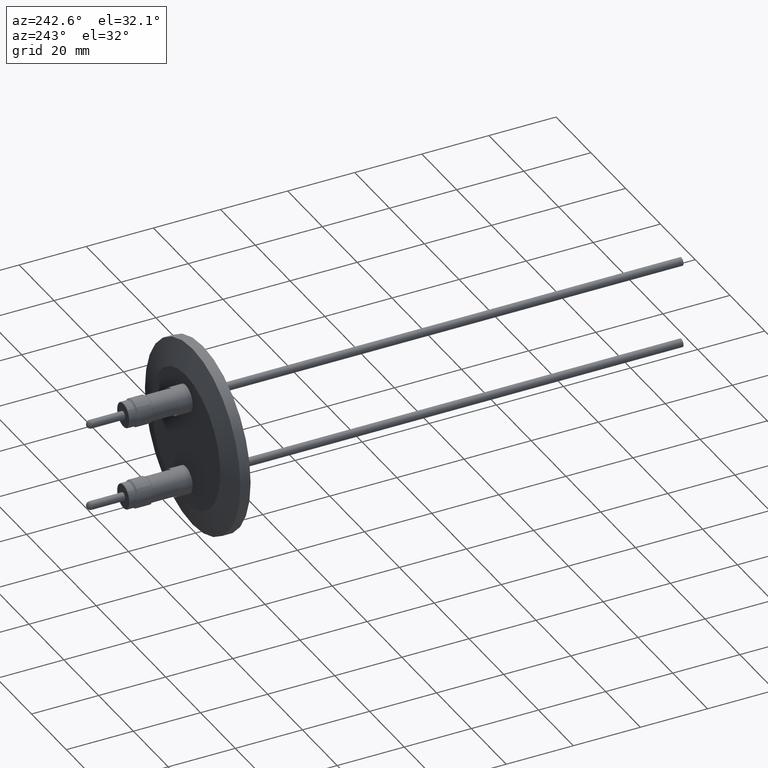
[diagram: clean part render]
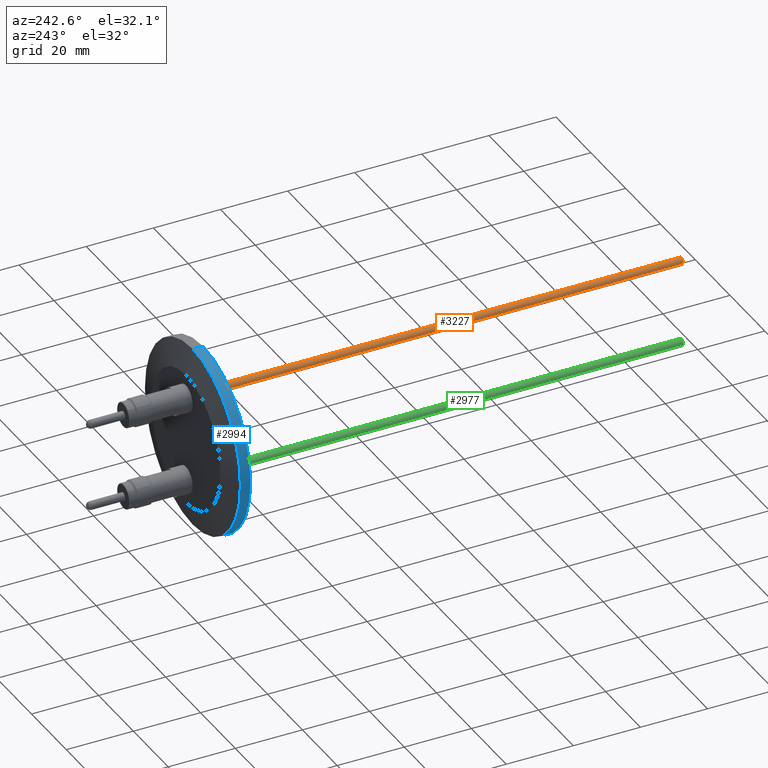
[diagram: same view with three faces highlighted in distinct colors, each labeled with its STEP entity id]
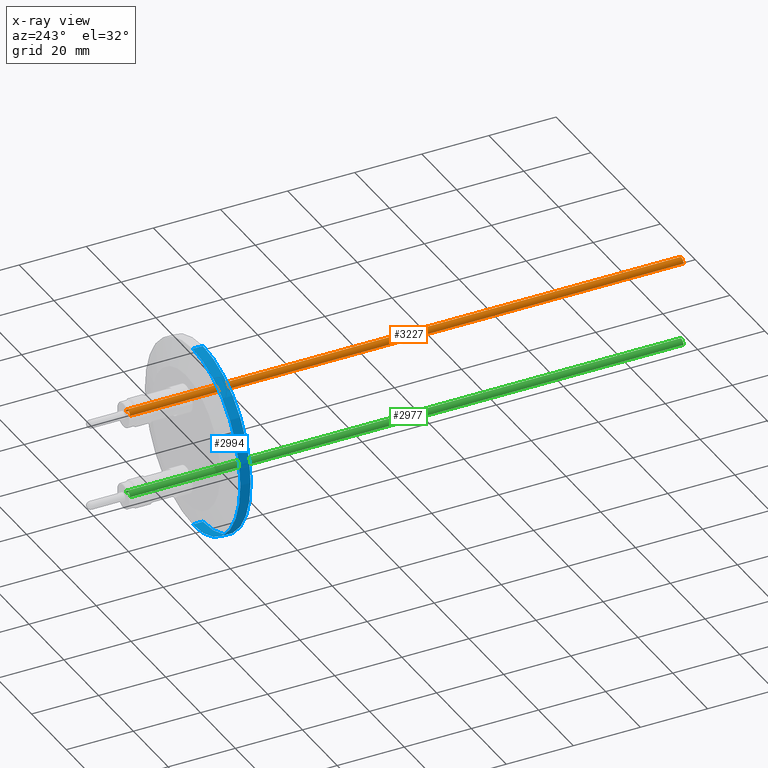
[diagram: x-ray of the same camera — body ghosted, the three highlighted faces saturated]
A machine part, auxiliary view with three faces highlighted in distinct colors.
The next image is the same camera in x-ray (body ghosted, the three faces saturated) — at least one of them is partly hidden behind the body in this view.
Their STEP definitions:

[orange] entity #3227 — the highlighted cylindrical surface (edge-blend (fillet) strip) has radius 1.1938 mm, axis along (0, 1, 0).
#4 = CARTESIAN_POINT ( 'NONE',  ( 0.04699999999999914000, -6.487712025527222300, 0.4999999999999992200 ) ) ;
#25 = CARTESIAN_POINT ( 'NONE',  ( -0.04700000000000100600, -6.487712025527222300, 0.5000000000000002200 ) ) ;
#578 = VERTEX_POINT ( 'NONE', #25 ) ;
#592 = VERTEX_POINT ( 'NONE', #4 ) ;
#634 = VECTOR ( 'NONE', #688, 39.37007874015748100 ) ;
#637 = VECTOR ( 'NONE', #682, 39.37007874015748100 ) ;
#638 = LINE ( 'NONE', #683, #634 ) ;
#639 = CIRCLE ( 'NONE', #1216, 0.04700000000000006900 ) ;
#641 = LINE ( 'NONE', #685, #637 ) ;
#643 = CIRCLE ( 'NONE', #1217, 0.04700000000000006900 ) ;
#682 = DIRECTION ( 'NONE',  ( 1.139261799679175500E-016, 1.000000000000000000, 3.998016188549883300E-017 ) ) ;
#683 = CARTESIAN_POINT ( 'NONE',  ( -0.04700000000000100600, -6.487712025527222300, 0.5000000000000001100 ) ) ;
#684 = DIRECTION ( 'NONE',  ( 1.000000000000000000, 0.0000000000000000000, -1.017177444449458100E-014 ) ) ;
#685 = CARTESIAN_POINT ( 'NONE',  ( 0.04699999999999914000, -6.487712025527222300, 0.4999999999999991100 ) ) ;
#687 = DIRECTION ( 'NONE',  ( 1.000000000000000000, -1.135242683537341800E-016, 0.0000000000000000000 ) ) ;
#688 = DIRECTION ( 'NONE',  ( 1.139261799679175500E-016, 1.000000000000000000, 3.998016188549883300E-017 ) ) ;
#689 = DIRECTION ( 'NONE',  ( 1.139261799679161200E-016, 1.000000000000000000, 4.491584059259572200E-017 ) ) ;
#690 = CARTESIAN_POINT ( 'NONE',  ( -1.942007370715040900E-016, 0.007287974472774305000, 0.4999999999999998300 ) ) ;
#691 = DIRECTION ( 'NONE',  ( -1.139261799679175500E-016, -1.000000000000000000, -3.998016188549883300E-017 ) ) ;
#693 = CARTESIAN_POINT ( 'NONE',  ( -9.341512759631281400E-016, -6.487712025527222300, 0.4999999999999996100 ) ) ;
#1216 = AXIS2_PLACEMENT_3D ( 'NONE', #690, #689, #687 ) ;
#1217 = AXIS2_PLACEMENT_3D ( 'NONE', #693, #691, #684 ) ;
#1341 = CYLINDRICAL_SURFACE ( 'NONE', #3200, 0.04700000000000006900 ) ;
#1347 = FACE_OUTER_BOUND ( 'NONE', #1912, .T. ) ;
#1744 = EDGE_CURVE ( 'NONE', #592, #578, #643, .T. ) ;
#1745 = EDGE_CURVE ( 'NONE', #592, #1890, #641, .T. ) ;
#1746 = EDGE_CURVE ( 'NONE', #1950, #1890, #639, .T. ) ;
#1747 = EDGE_CURVE ( 'NONE', #578, #1950, #638, .T. ) ;
#1890 = VERTEX_POINT ( 'NONE', #2728 ) ;
#1912 = EDGE_LOOP ( 'NONE', ( #2185, #2184, #2191, #2204 ) ) ;
#1950 = VERTEX_POINT ( 'NONE', #2678 ) ;
#2184 = ORIENTED_EDGE ( 'NONE', *, *, #1745, .T. ) ;
#2185 = ORIENTED_EDGE ( 'NONE', *, *, #1744, .F. ) ;
#2191 = ORIENTED_EDGE ( 'NONE', *, *, #1746, .F. ) ;
#2204 = ORIENTED_EDGE ( 'NONE', *, *, #1747, .F. ) ;
#2678 = CARTESIAN_POINT ( 'NONE',  ( -0.04700000000000027100, 0.007287974472774310200, 0.5000000000000002200 ) ) ;
#2728 = CARTESIAN_POINT ( 'NONE',  ( 0.04699999999999987500, 0.007287974472774299800, 0.4999999999999992200 ) ) ;
#3200 = AXIS2_PLACEMENT_3D ( 'NONE', #3411, #3409, #3407 ) ;
#3227 = ADVANCED_FACE ( 'NONE', ( #1347 ), #1341, .T. ) ;
#3407 = DIRECTION ( 'NONE',  ( -1.000000000000000000, 0.0000000000000000000, 1.017177444449458100E-014 ) ) ;
#3409 = DIRECTION ( 'NONE',  ( 1.139261799679175500E-016, 1.000000000000000000, 3.998016188549883300E-017 ) ) ;
#3411 = CARTESIAN_POINT ( 'NONE',  ( -9.341512759631281400E-016, -6.487712025527222300, 0.4999999999999996100 ) ) ;

[blue] entity #2994 — the highlighted cylindrical surface (partial cylindrical patch) has radius 27.432 mm, axis along (-0, 1, -0).
#2 = CARTESIAN_POINT ( 'NONE',  ( 0.0000000000000000000, -0.8727120255272258200, 1.080000000000000500 ) ) ;
#13 = CARTESIAN_POINT ( 'NONE',  ( 1.322618543079142200E-016, -0.8727120255272258200, -1.080000000000000500 ) ) ;
#182 = DIRECTION ( 'NONE',  ( -0.0000000000000000000, 1.000000000000000000, -0.0000000000000000000 ) ) ;
#217 = CARTESIAN_POINT ( 'NONE',  ( 0.0000000000000000000, -0.7527120255272259400, 1.080000000000000500 ) ) ;
#220 = CARTESIAN_POINT ( 'NONE',  ( 1.322618543079142200E-016, -0.7527120255272259400, -1.080000000000000500 ) ) ;
#583 = VERTEX_POINT ( 'NONE', #13 ) ;
#594 = VERTEX_POINT ( 'NONE', #2 ) ;
#626 = VERTEX_POINT ( 'NONE', #220 ) ;
#629 = VERTEX_POINT ( 'NONE', #217 ) ;
#635 = LINE ( 'NONE', #2740, #636 ) ;
#636 = VECTOR ( 'NONE', #2748, 39.37007874015748100 ) ;
#666 = AXIS2_PLACEMENT_3D ( 'NONE', #1172, #1174, #1179 ) ;
#800 = CARTESIAN_POINT ( 'NONE',  ( 0.0000000000000000000, -0.8727120255272258200, 0.0000000000000000000 ) ) ;
#1172 = CARTESIAN_POINT ( 'NONE',  ( 0.0000000000000000000, 0.0000000000000000000, 0.0000000000000000000 ) ) ;
#1174 = DIRECTION ( 'NONE',  ( -0.0000000000000000000, 1.000000000000000000, -0.0000000000000000000 ) ) ;
#1179 = DIRECTION ( 'NONE',  ( 0.0000000000000000000, 0.0000000000000000000, 1.000000000000000000 ) ) ;
#1389 = CIRCLE ( 'NONE', #2609, 1.080000000000000500 ) ;
#1390 = CIRCLE ( 'NONE', #2606, 1.080000000000000500 ) ;
#1434 = CYLINDRICAL_SURFACE ( 'NONE', #666, 1.080000000000000500 ) ;
#1442 = FACE_OUTER_BOUND ( 'NONE', #2068, .T. ) ;
#1765 = EDGE_CURVE ( 'NONE', #583, #626, #635, .T. ) ;
#1766 = EDGE_CURVE ( 'NONE', #594, #629, #3033, .T. ) ;
#2068 = EDGE_LOOP ( 'NONE', ( #2216, #2250, #2188, #2206 ) ) ;
#2188 = ORIENTED_EDGE ( 'NONE', *, *, #1766, .T. ) ;
#2206 = ORIENTED_EDGE ( 'NONE', *, *, #3058, .F. ) ;
#2216 = ORIENTED_EDGE ( 'NONE', *, *, #1765, .F. ) ;
#2250 = ORIENTED_EDGE ( 'NONE', *, *, #3057, .T. ) ;
#2606 = AXIS2_PLACEMENT_3D ( 'NONE', #800, #182, #3293 ) ;
#2609 = AXIS2_PLACEMENT_3D ( 'NONE', #3294, #3295, #3296 ) ;
#2663 = VECTOR ( 'NONE', #2731, 39.37007874015748100 ) ;
#2731 = DIRECTION ( 'NONE',  ( -0.0000000000000000000, 1.000000000000000000, -0.0000000000000000000 ) ) ;
#2735 = CARTESIAN_POINT ( 'NONE',  ( 0.0000000000000000000, 0.0000000000000000000, 1.080000000000000500 ) ) ;
#2740 = CARTESIAN_POINT ( 'NONE',  ( 1.322618543079142200E-016, 0.0000000000000000000, -1.080000000000000500 ) ) ;
#2748 = DIRECTION ( 'NONE',  ( -0.0000000000000000000, 1.000000000000000000, -0.0000000000000000000 ) ) ;
#2994 = ADVANCED_FACE ( 'NONE', ( #1442 ), #1434, .T. ) ;
#3033 = LINE ( 'NONE', #2735, #2663 ) ;
#3057 = EDGE_CURVE ( 'NONE', #583, #594, #1390, .T. ) ;
#3058 = EDGE_CURVE ( 'NONE', #626, #629, #1389, .T. ) ;
#3293 = DIRECTION ( 'NONE',  ( 0.0000000000000000000, 0.0000000000000000000, 1.000000000000000000 ) ) ;
#3294 = CARTESIAN_POINT ( 'NONE',  ( 0.0000000000000000000, -0.7527120255272259400, 0.0000000000000000000 ) ) ;
#3295 = DIRECTION ( 'NONE',  ( -0.0000000000000000000, 1.000000000000000000, -0.0000000000000000000 ) ) ;
#3296 = DIRECTION ( 'NONE',  ( 0.0000000000000000000, 0.0000000000000000000, 1.000000000000000000 ) ) ;

[green] entity #2977 — the highlighted cylindrical surface (edge-blend (fillet) strip) has radius 1.1938 mm, axis along (-0, 1, -0).
#53 = CARTESIAN_POINT ( 'NONE',  ( 0.04699999999999750900, -6.487712025527222300, -0.5000000000000004400 ) ) ;
#55 = DIRECTION ( 'NONE',  ( -1.139261799679178200E-016, 1.000000000000000000, -3.998016188549803800E-017 ) ) ;
#147 = DIRECTION ( 'NONE',  ( -1.139261799679178200E-016, 1.000000000000000000, -3.998016188549803800E-017 ) ) ;
#148 = CARTESIAN_POINT ( 'NONE',  ( -0.04700000000000263700, -6.487712025527222300, -0.4999999999999987800 ) ) ;
#226 = CARTESIAN_POINT ( 'NONE',  ( -0.04700000000000336500, 0.007287974472774299800, -0.4999999999999988900 ) ) ;
#227 = CARTESIAN_POINT ( 'NONE',  ( 0.04699999999999750900, -6.487712025527222300, -0.5000000000000005600 ) ) ;
#266 = CIRCLE ( 'NONE', #986, 0.04700000000000006900 ) ;
#328 = VECTOR ( 'NONE', #55, 39.37007874015748100 ) ;
#332 = LINE ( 'NONE', #53, #328 ) ;
#382 = EDGE_CURVE ( 'NONE', #1809, #620, #477, .T. ) ;
#420 = EDGE_CURVE ( 'NONE', #619, #1786, #332, .T. ) ;
#474 = VECTOR ( 'NONE', #147, 39.37007874015748100 ) ;
#477 = LINE ( 'NONE', #148, #474 ) ;
#539 = EDGE_LOOP ( 'NONE', ( #2351, #2352, #2353, #2354 ) ) ;
#619 = VERTEX_POINT ( 'NONE', #227 ) ;
#620 = VERTEX_POINT ( 'NONE', #226 ) ;
#810 = DIRECTION ( 'NONE',  ( 1.000000000000000000, 1.135242683537341800E-016, 0.0000000000000000000 ) ) ;
#811 = DIRECTION ( 'NONE',  ( -1.139261799679164400E-016, 1.000000000000000000, -4.491584059259492700E-017 ) ) ;
#812 = CARTESIAN_POINT ( 'NONE',  ( -3.297280601771627900E-015, 0.007287974472774305000, -0.4999999999999998300 ) ) ;
#977 = AXIS2_PLACEMENT_3D ( 'NONE', #3111, #3099, #3162 ) ;
#986 = AXIS2_PLACEMENT_3D ( 'NONE', #812, #811, #810 ) ;
#1246 = AXIS2_PLACEMENT_3D ( 'NONE', #1635, #1636, #1639 ) ;
#1280 = EDGE_CURVE ( 'NONE', #620, #1786, #266, .T. ) ;
#1293 = EDGE_CURVE ( 'NONE', #619, #1809, #2899, .T. ) ;
#1466 = CYLINDRICAL_SURFACE ( 'NONE', #1246, 0.04700000000000006900 ) ;
#1472 = FACE_OUTER_BOUND ( 'NONE', #539, .T. ) ;
#1635 = CARTESIAN_POINT ( 'NONE',  ( -2.557330062880002300E-015, -6.487712025527222300, -0.4999999999999996100 ) ) ;
#1636 = DIRECTION ( 'NONE',  ( -1.139261799679178200E-016, 1.000000000000000000, -3.998016188549803800E-017 ) ) ;
#1639 = DIRECTION ( 'NONE',  ( 1.000000000000000000, 0.0000000000000000000, -1.743732761913357000E-014 ) ) ;
#1786 = VERTEX_POINT ( 'NONE', #2798 ) ;
#1809 = VERTEX_POINT ( 'NONE', #2784 ) ;
#2351 = ORIENTED_EDGE ( 'NONE', *, *, #382, .F. ) ;
#2352 = ORIENTED_EDGE ( 'NONE', *, *, #1293, .F. ) ;
#2353 = ORIENTED_EDGE ( 'NONE', *, *, #420, .T. ) ;
#2354 = ORIENTED_EDGE ( 'NONE', *, *, #1280, .F. ) ;
#2784 = CARTESIAN_POINT ( 'NONE',  ( -0.04700000000000263700, -6.487712025527222300, -0.4999999999999988900 ) ) ;
#2798 = CARTESIAN_POINT ( 'NONE',  ( 0.04699999999999678000, 0.007287974472774310200, -0.4999999999999998300 ) ) ;
#2899 = CIRCLE ( 'NONE', #977, 0.04700000000000006900 ) ;
#2977 = ADVANCED_FACE ( 'NONE', ( #1472 ), #1466, .T. ) ;
#3099 = DIRECTION ( 'NONE',  ( 1.139261799679178200E-016, -1.000000000000000000, 3.998016188549803800E-017 ) ) ;
#3111 = CARTESIAN_POINT ( 'NONE',  ( -2.557330062880002300E-015, -6.487712025527222300, -0.4999999999999996100 ) ) ;
#3162 = DIRECTION ( 'NONE',  ( -1.000000000000000000, 0.0000000000000000000, 1.743732761913357000E-014 ) ) ;